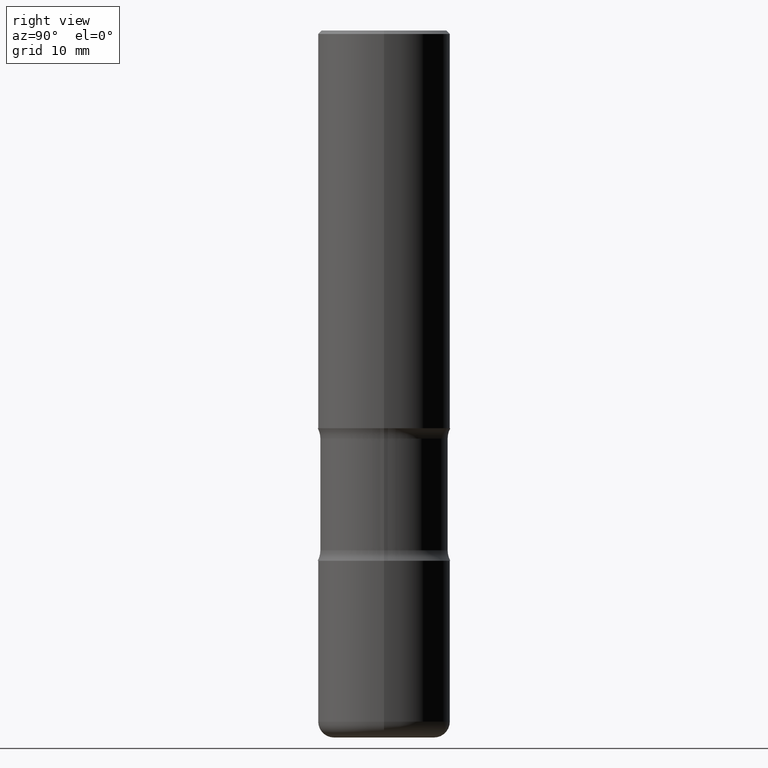
[diagram: clean part render]
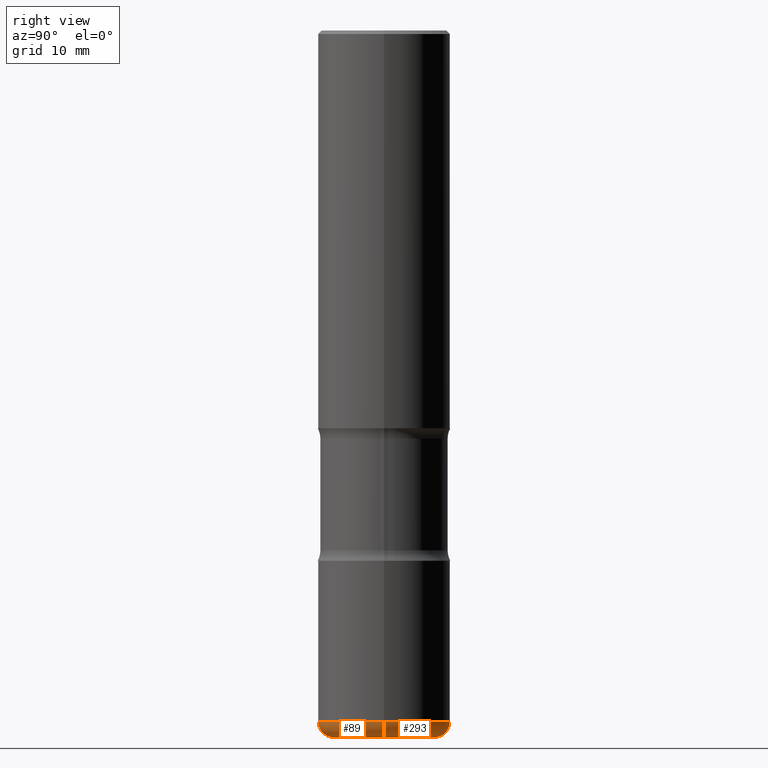
[diagram: same view with one multi-face feature highlighted, each face labeled with its STEP entity id]
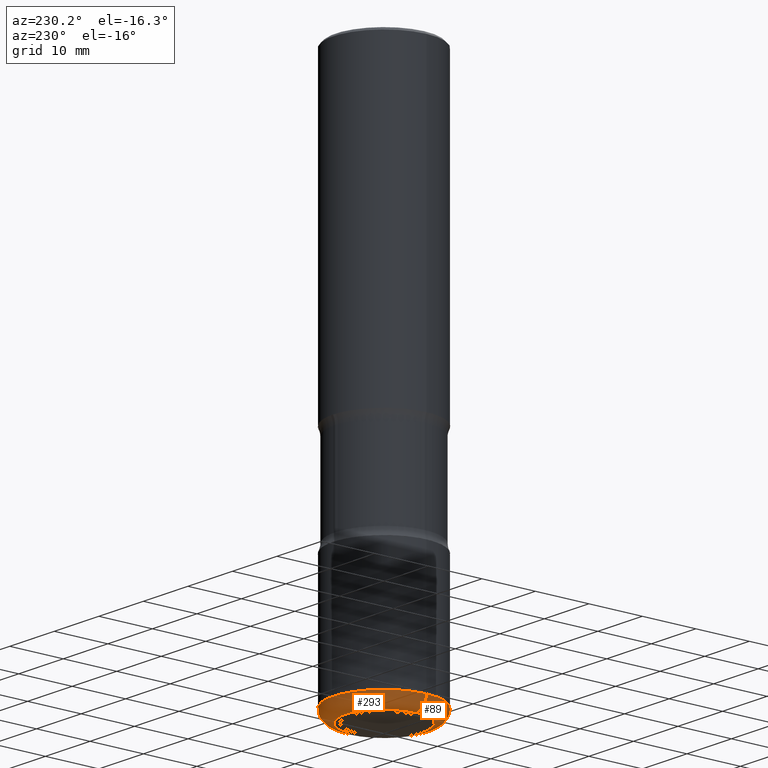
[diagram: same view with one multi-face feature highlighted, each face labeled with its STEP entity id]
A machine part, right view. The highlighted faces form ONE feature: a constant-radius fillet chain: 2 tangent blend faces with common blend radius 2.286 mm. The faces share edges in the B-rep.
A second angle (auxiliary view) of the same feature is appended — it is thin or edge-on in the first view.
Their STEP definitions:
[1] entity #293 (Torus):
#11 = CIRCLE ( 'NONE', #508, 0.08999999999999992728 ) ;
#31 = VERTEX_POINT ( 'NONE', #409 ) ;
#39 = ORIENTED_EDGE ( 'NONE', *, *, #777, .F. ) ;
#48 = EDGE_LOOP ( 'NONE', ( #197, #499, #503, #39 ) ) ;
#49 = CARTESIAN_POINT ( 'NONE',  ( -0.3749999999999999445, -1.098715677577632337E-14, -3.910000000000000142 ) ) ;
#59 = DIRECTION ( 'NONE',  ( -2.445468806185136597E-29, 3.491481338843145583E-15, 1.000000000000000000 ) ) ;
#75 = VERTEX_POINT ( 'NONE', #784 ) ;
#120 = CIRCLE ( 'NONE', #289, 0.08999999999999992728 ) ;
#125 = CARTESIAN_POINT ( 'NONE',  ( 9.561783032183883600E-29, -1.365169203487670064E-14, -3.910000000000000142 ) ) ;
#134 = CARTESIAN_POINT ( 'NONE',  ( -0.2850000000000000311, -1.162664523796041410E-14, -3.910000000000000142 ) ) ;
#140 = EDGE_CURVE ( 'NONE', #75, #710, #150, .T. ) ;
#150 = CIRCLE ( 'NONE', #587, 0.2850000000000000866 ) ;
#189 = DIRECTION ( 'NONE',  ( 1.000000000000000000, -6.982962677686266711E-15, 0.000000000000000000 ) ) ;
#197 = ORIENTED_EDGE ( 'NONE', *, *, #140, .T. ) ;
#249 = AXIS2_PLACEMENT_3D ( 'NONE', #125, #59, #189 ) ;
#251 = DIRECTION ( 'NONE',  ( 1.000000000000000000, -6.982962677686265133E-15, 0.000000000000000000 ) ) ;
#261 = DIRECTION ( 'NONE',  ( -2.445468806185136597E-29, 3.491481338843145583E-15, 1.000000000000000000 ) ) ;
#289 = AXIS2_PLACEMENT_3D ( 'NONE', #362, #613, #299 ) ;
#293 = ADVANCED_FACE ( 'NONE', ( #604 ), #364, .T. ) ;
#299 = DIRECTION ( 'NONE',  ( 1.000000000000000000, -6.982962677686273810E-15, 0.000000000000000000 ) ) ;
#321 = CARTESIAN_POINT ( 'NONE',  ( 9.561783032183883600E-29, -1.365169203487670064E-14, -3.910000000000000142 ) ) ;
#362 = CARTESIAN_POINT ( 'NONE',  ( 0.2850000000000000311, -1.564183639801728729E-14, -3.910000000000000142 ) ) ;
#364 = TOROIDAL_SURFACE ( 'NONE', #431, 0.2850000000000000311, 0.08999999999999992728 ) ;
#393 = CARTESIAN_POINT ( 'NONE',  ( -0.2850000000000000866, -1.146401766711631116E-14, -4.000000000000000000 ) ) ;
#409 = CARTESIAN_POINT ( 'NONE',  ( 0.3749999999999999445, -1.627030303900905066E-14, -3.910000000000000142 ) ) ;
#410 = VERTEX_POINT ( 'NONE', #49 ) ;
#431 = AXIS2_PLACEMENT_3D ( 'NONE', #321, #261, #783 ) ;
#499 = ORIENTED_EDGE ( 'NONE', *, *, #601, .T. ) ;
#503 = ORIENTED_EDGE ( 'NONE', *, *, #612, .F. ) ;
#508 = AXIS2_PLACEMENT_3D ( 'NONE', #134, #632, #684 ) ;
#544 = DIRECTION ( 'NONE',  ( -2.445468806185136597E-29, 3.491481338843145583E-15, 1.000000000000000000 ) ) ;
#587 = AXIS2_PLACEMENT_3D ( 'NONE', #797, #544, #251 ) ;
#601 = EDGE_CURVE ( 'NONE', #710, #410, #11, .T. ) ;
#604 = FACE_OUTER_BOUND ( 'NONE', #48, .T. ) ;
#612 = EDGE_CURVE ( 'NONE', #31, #410, #764, .T. ) ;
#613 = DIRECTION ( 'NONE',  ( -6.982962677686266711E-15, -1.000000000000000000, 3.491481338843145583E-15 ) ) ;
#632 = DIRECTION ( 'NONE',  ( 7.105427357601001859E-15, 1.000000000000000000, -3.491481338843145583E-15 ) ) ;
#684 = DIRECTION ( 'NONE',  ( -1.000000000000000000, 7.105427357600996337E-15, 0.000000000000000000 ) ) ;
#710 = VERTEX_POINT ( 'NONE', #393 ) ;
#764 = CIRCLE ( 'NONE', #249, 0.3750000000000000555 ) ;
#777 = EDGE_CURVE ( 'NONE', #75, #31, #120, .T. ) ;
#783 = DIRECTION ( 'NONE',  ( 1.000000000000000000, -6.982962677686263555E-15, 4.883557194083111219E-29 ) ) ;
#784 = CARTESIAN_POINT ( 'NONE',  ( 0.2850000000000000866, -1.595606971851316740E-14, -4.000000000000000000 ) ) ;
#797 = CARTESIAN_POINT ( 'NONE',  ( 9.781875224740546387E-29, -1.396592535537258233E-14, -4.000000000000000000 ) ) ;
[2] entity #89 (Torus):
#11 = CIRCLE ( 'NONE', #508, 0.08999999999999992728 ) ;
#13 = CARTESIAN_POINT ( 'NONE',  ( 9.561783032183883600E-29, -1.365169203487670064E-14, -3.910000000000000142 ) ) ;
#23 = DIRECTION ( 'NONE',  ( 1.000000000000000000, -6.982962677686263555E-15, 4.883557194083111219E-29 ) ) ;
#31 = VERTEX_POINT ( 'NONE', #409 ) ;
#40 = CIRCLE ( 'NONE', #626, 0.2850000000000000866 ) ;
#49 = CARTESIAN_POINT ( 'NONE',  ( -0.3749999999999999445, -1.098715677577632337E-14, -3.910000000000000142 ) ) ;
#75 = VERTEX_POINT ( 'NONE', #784 ) ;
#85 = TOROIDAL_SURFACE ( 'NONE', #187, 0.2850000000000000311, 0.08999999999999992728 ) ;
#89 = ADVANCED_FACE ( 'NONE', ( #287 ), #85, .T. ) ;
#120 = CIRCLE ( 'NONE', #289, 0.08999999999999992728 ) ;
#126 = ORIENTED_EDGE ( 'NONE', *, *, #490, .F. ) ;
#134 = CARTESIAN_POINT ( 'NONE',  ( -0.2850000000000000311, -1.162664523796041410E-14, -3.910000000000000142 ) ) ;
#187 = AXIS2_PLACEMENT_3D ( 'NONE', #463, #295, #23 ) ;
#215 = ORIENTED_EDGE ( 'NONE', *, *, #802, .T. ) ;
#245 = CARTESIAN_POINT ( 'NONE',  ( 9.781875224740546387E-29, -1.396592535537258233E-14, -4.000000000000000000 ) ) ;
#287 = FACE_OUTER_BOUND ( 'NONE', #749, .T. ) ;
#289 = AXIS2_PLACEMENT_3D ( 'NONE', #362, #613, #299 ) ;
#291 = DIRECTION ( 'NONE',  ( -2.445468806185136597E-29, 3.491481338843145583E-15, 1.000000000000000000 ) ) ;
#295 = DIRECTION ( 'NONE',  ( -2.445468806185136597E-29, 3.491481338843145583E-15, 1.000000000000000000 ) ) ;
#299 = DIRECTION ( 'NONE',  ( 1.000000000000000000, -6.982962677686273810E-15, 0.000000000000000000 ) ) ;
#362 = CARTESIAN_POINT ( 'NONE',  ( 0.2850000000000000311, -1.564183639801728729E-14, -3.910000000000000142 ) ) ;
#393 = CARTESIAN_POINT ( 'NONE',  ( -0.2850000000000000866, -1.146401766711631116E-14, -4.000000000000000000 ) ) ;
#409 = CARTESIAN_POINT ( 'NONE',  ( 0.3749999999999999445, -1.627030303900905066E-14, -3.910000000000000142 ) ) ;
#410 = VERTEX_POINT ( 'NONE', #49 ) ;
#444 = DIRECTION ( 'NONE',  ( -2.445468806185136597E-29, 3.491481338843145583E-15, 1.000000000000000000 ) ) ;
#463 = CARTESIAN_POINT ( 'NONE',  ( 9.561783032183883600E-29, -1.365169203487670064E-14, -3.910000000000000142 ) ) ;
#490 = EDGE_CURVE ( 'NONE', #410, #31, #624, .T. ) ;
#508 = AXIS2_PLACEMENT_3D ( 'NONE', #134, #632, #684 ) ;
#567 = ORIENTED_EDGE ( 'NONE', *, *, #777, .T. ) ;
#601 = EDGE_CURVE ( 'NONE', #710, #410, #11, .T. ) ;
#613 = DIRECTION ( 'NONE',  ( -6.982962677686266711E-15, -1.000000000000000000, 3.491481338843145583E-15 ) ) ;
#624 = CIRCLE ( 'NONE', #779, 0.3750000000000000555 ) ;
#626 = AXIS2_PLACEMENT_3D ( 'NONE', #245, #291, #798 ) ;
#632 = DIRECTION ( 'NONE',  ( 7.105427357601001859E-15, 1.000000000000000000, -3.491481338843145583E-15 ) ) ;
#684 = DIRECTION ( 'NONE',  ( -1.000000000000000000, 7.105427357600996337E-15, 0.000000000000000000 ) ) ;
#690 = DIRECTION ( 'NONE',  ( 1.000000000000000000, -6.982962677686266711E-15, 0.000000000000000000 ) ) ;
#697 = ORIENTED_EDGE ( 'NONE', *, *, #601, .F. ) ;
#710 = VERTEX_POINT ( 'NONE', #393 ) ;
#749 = EDGE_LOOP ( 'NONE', ( #697, #215, #567, #126 ) ) ;
#777 = EDGE_CURVE ( 'NONE', #75, #31, #120, .T. ) ;
#779 = AXIS2_PLACEMENT_3D ( 'NONE', #13, #444, #690 ) ;
#784 = CARTESIAN_POINT ( 'NONE',  ( 0.2850000000000000866, -1.595606971851316740E-14, -4.000000000000000000 ) ) ;
#798 = DIRECTION ( 'NONE',  ( 1.000000000000000000, -6.982962677686265133E-15, 0.000000000000000000 ) ) ;
#802 = EDGE_CURVE ( 'NONE', #710, #75, #40, .T. ) ;